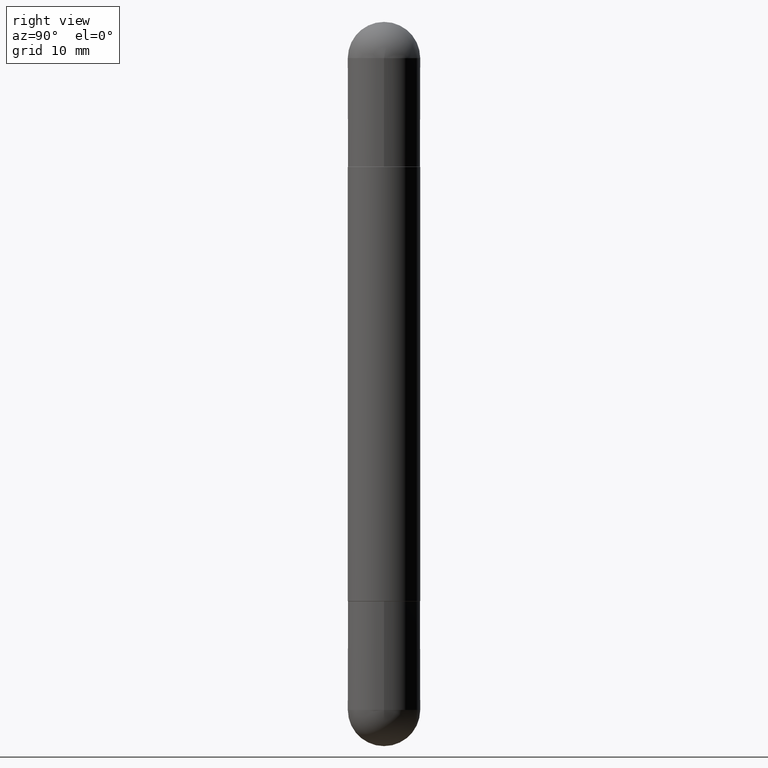
[diagram: clean part render]
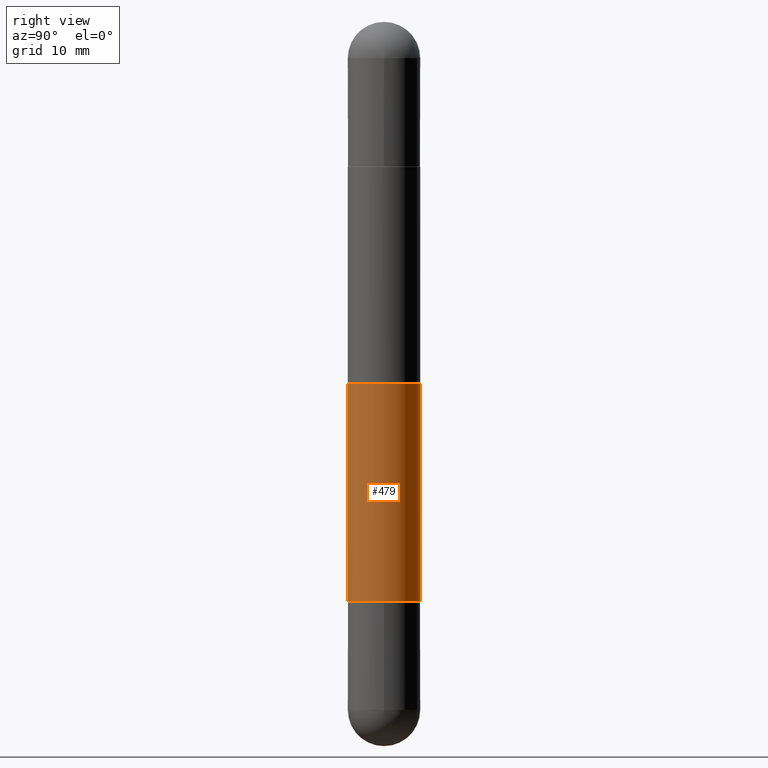
[diagram: same view with one face highlighted and labeled with its STEP entity id]
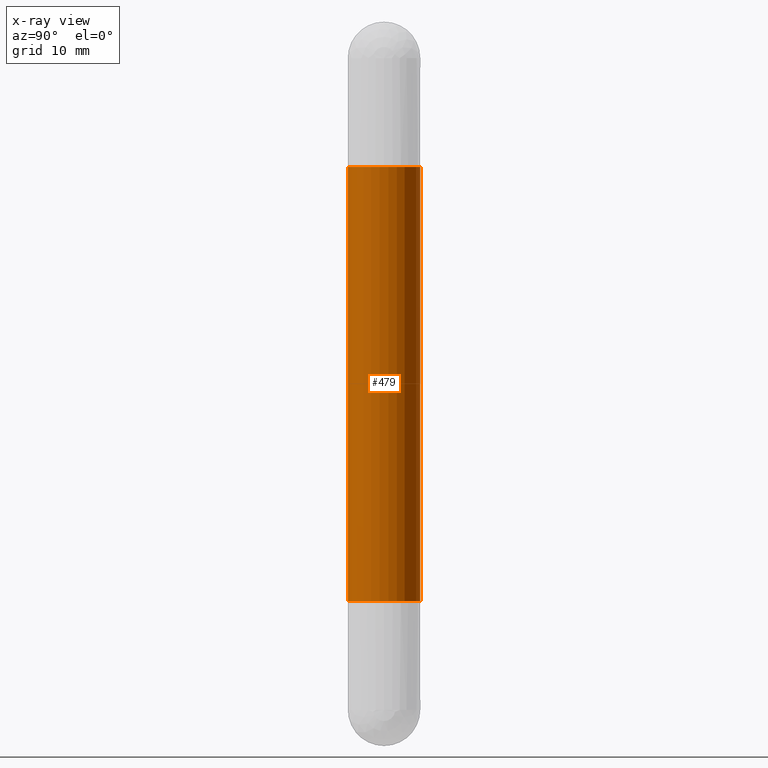
[diagram: x-ray of the same camera — body ghosted, the highlighted face saturated]
A machine part, right view. The second image highlights one B-rep face of the part: STEP entity #479.
The next image is the same camera in x-ray: the body ghosted, the highlighted face saturated — about 0% of this face is hidden behind the body in this view.
In plain terms, the highlighted cylindrical surface (edge-blend (fillet) strip) has radius 3.175 mm, axis along (-0, 0, -1).
Its self-contained STEP definition (entity closure, byte-faithful):
#23 = CARTESIAN_POINT ( 'NONE',  ( -8.728703347107363030E-16, -0.1250000000000072442, -1.998999999999999000 ) ) ;
#41 = EDGE_CURVE ( 'NONE', #437, #155, #277, .T. ) ;
#85 = ORIENTED_EDGE ( 'NONE', *, *, #41, .T. ) ;
#104 = CARTESIAN_POINT ( 'NONE',  ( -8.728703347107364016E-16, -0.1250000000000072720, -0.5010000000000014442 ) ) ;
#116 = LINE ( 'NONE', #481, #660 ) ;
#120 = DIRECTION ( 'NONE',  ( -6.982962677686265922E-15, -1.000000000000000000, -4.370956789862816416E-15 ) ) ;
#136 = DIRECTION ( 'NONE',  ( 2.445904692845178140E-29, -3.490857124336838375E-15, 1.000000000000000000 ) ) ;
#155 = VERTEX_POINT ( 'NONE', #347 ) ;
#161 = VERTEX_POINT ( 'NONE', #392 ) ;
#166 = EDGE_CURVE ( 'NONE', #464, #161, #647, .T. ) ;
#169 = CYLINDRICAL_SURFACE ( 'NONE', #326, 0.1250000000000001388 ) ;
#248 = EDGE_LOOP ( 'NONE', ( #380, #404, #593, #85 ) ) ;
#261 = CARTESIAN_POINT ( 'NONE',  ( 4.889363480997510233E-29, -6.978223391549338005E-15, -0.5010000000000010001 ) ) ;
#277 = CIRCLE ( 'NONE', #581, 0.1250000000000002776 ) ;
#314 = DIRECTION ( 'NONE',  ( -6.982962677686265922E-15, -1.000000000000000000, -3.278217592397108762E-15 ) ) ;
#326 = AXIS2_PLACEMENT_3D ( 'NONE', #817, #433, #120 ) ;
#347 = CARTESIAN_POINT ( 'NONE',  ( 8.575622497214732956E-16, 0.1249999999999932693, -1.999000000000000110 ) ) ;
#380 = ORIENTED_EDGE ( 'NONE', *, *, #450, .F. ) ;
#392 = CARTESIAN_POINT ( 'NONE',  ( 8.575622497214919324E-16, 0.1249999999999932693, -0.5010000000000006670 ) ) ;
#395 = LINE ( 'NONE', #471, #731 ) ;
#404 = ORIENTED_EDGE ( 'NONE', *, *, #166, .F. ) ;
#420 = EDGE_CURVE ( 'NONE', #464, #437, #395, .T. ) ;
#433 = DIRECTION ( 'NONE',  ( -2.445904692845178140E-29, 3.490857124336838375E-15, -1.000000000000000000 ) ) ;
#437 = VERTEX_POINT ( 'NONE', #23 ) ;
#450 = EDGE_CURVE ( 'NONE', #161, #155, #116, .T. ) ;
#464 = VERTEX_POINT ( 'NONE', #104 ) ;
#471 = CARTESIAN_POINT ( 'NONE',  ( -8.728703347107842263E-16, -0.1250000000000001388, -2.500000000000001332 ) ) ;
#479 = ADVANCED_FACE ( 'NONE', ( #604 ), #169, .T. ) ;
#481 = CARTESIAN_POINT ( 'NONE',  ( 8.575622497214423328E-16, 0.1250000000000001388, -2.500000000000000000 ) ) ;
#527 = CARTESIAN_POINT ( 'NONE',  ( 4.889363480997510233E-29, -6.978223391549338005E-15, -1.998999999999999666 ) ) ;
#581 = AXIS2_PLACEMENT_3D ( 'NONE', #527, #722, #808 ) ;
#593 = ORIENTED_EDGE ( 'NONE', *, *, #420, .T. ) ;
#604 = FACE_OUTER_BOUND ( 'NONE', #248, .T. ) ;
#607 = AXIS2_PLACEMENT_3D ( 'NONE', #261, #136, #314 ) ;
#647 = CIRCLE ( 'NONE', #607, 0.1250000000000002776 ) ;
#660 = VECTOR ( 'NONE', #674, 39.37007874015748143 ) ;
#674 = DIRECTION ( 'NONE',  ( -2.445904692845177860E-29, 3.490857124336837980E-15, -1.000000000000000000 ) ) ;
#722 = DIRECTION ( 'NONE',  ( -2.445904692845178140E-29, 3.490857124336838375E-15, 1.000000000000000000 ) ) ;
#725 = DIRECTION ( 'NONE',  ( -2.445904692845177860E-29, 3.490857124336837980E-15, -1.000000000000000000 ) ) ;
#731 = VECTOR ( 'NONE', #725, 39.37007874015748143 ) ;
#808 = DIRECTION ( 'NONE',  ( -6.982962677686265922E-15, -1.000000000000000000, 4.370956789862811683E-15 ) ) ;
#817 = CARTESIAN_POINT ( 'NONE',  ( 0.000000000000000000, 0.000000000000000000, -2.500000000000000444 ) ) ;